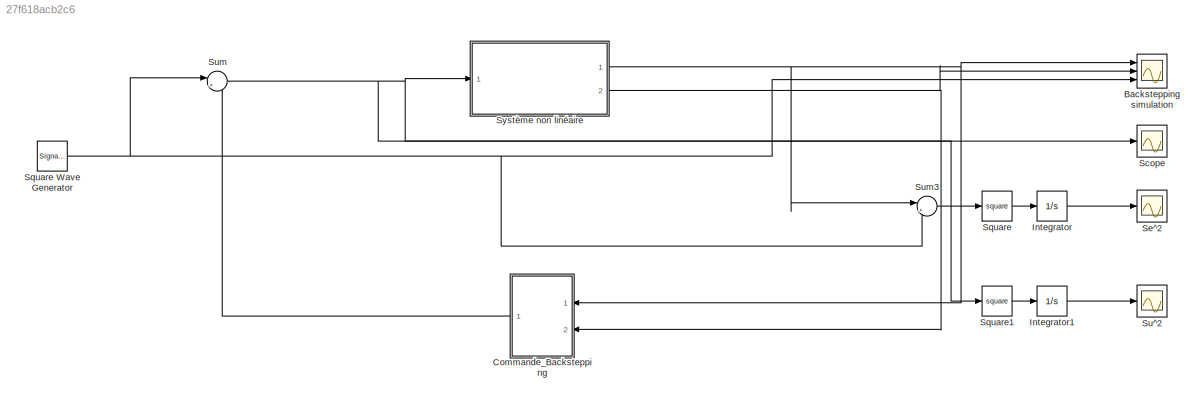
MODEL slx_27f618acb2c6
KIND model
CONFIG AbsTol = auto
CONFIG EnableMultiTasking = off
CONFIG FixedStep = auto
CONFIG MaxStep = 0.2
CONFIG MinStep = auto
CONFIG RelTol = 1e-3
CONFIG SampleTimeConstraint = Unconstrained
CONFIG Solver = ode23
CONFIG SolverName = ode23
CONFIG StartTime = 0.0
CONFIG StopTime = 100
BLOCK [Scope] Backstepping simulation
  Floating = off
  NumInputPorts = 3
  Ports = [3]
  ScopeSpecificationString = Simulink.scopes.TimeScopeBlockCfg('CurrentConfiguration', extmgr.ConfigurationSet(extmgr.Configuration('Core','General UI',true),extmgr.Configuration('Core','Source UI',true),extmgr.Configuration('Sources','WiredSimulink',true),extmgr.Configuration('Visuals','Time Domain',true,'SerializedDisplays',{struct('MinYLimReal','-2.20554','MaxYLimReal','2.20172','YLabelReal','','MinYLimMag','0.00000','MaxY...<+1446ch>
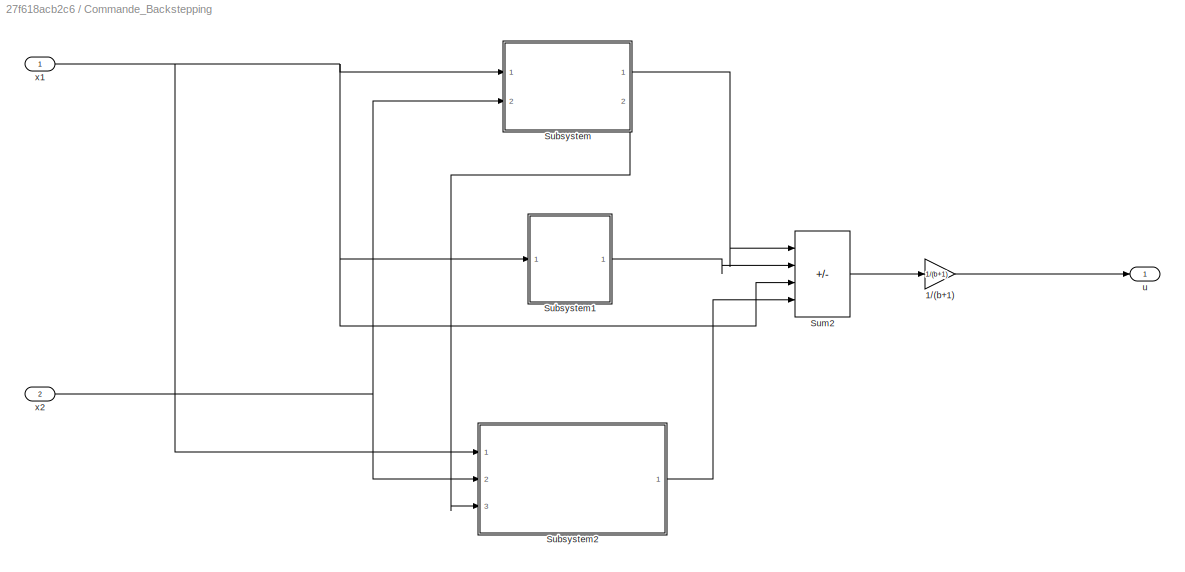
BLOCK [SubSystem] Commande_Backstepping
  NameLocation = top
  Ports = [2, 1]
  RequestExecContextInheritance = off
BLOCK [Gain] Commande_Backstepping/1//(b+1)
  Gain = 1/(b+1)
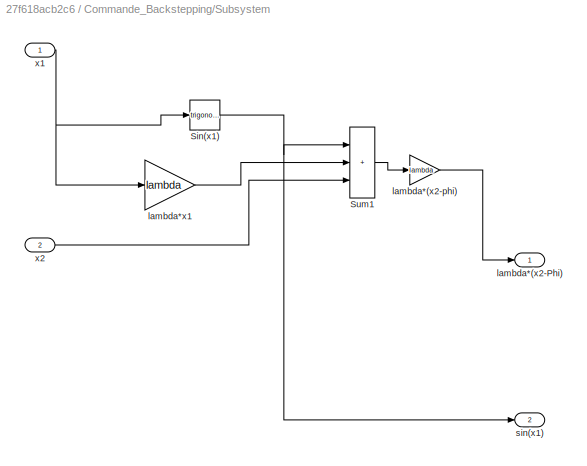
BLOCK [SubSystem] Commande_Backstepping/Subsystem
  Ports = [2, 2]
  RequestExecContextInheritance = off
BLOCK [Trigonometry] Commande_Backstepping/Subsystem/Sin(x1)
  Ports = [1, 1]
BLOCK [Sum] Commande_Backstepping/Subsystem/Sum1
  IconShape = rectangular
  Inputs = |+++
  Ports = [3, 1]
BLOCK [Outport] Commande_Backstepping/Subsystem/lambda*(x2-Phi)
BLOCK [Gain] Commande_Backstepping/Subsystem/lambda*(x2-phi)
  Gain = lambda
BLOCK [Gain] Commande_Backstepping/Subsystem/lambda*x1
  Gain = lambda
BLOCK [Outport] Commande_Backstepping/Subsystem/sin(x1)
  Port = 2
BLOCK [Inport] Commande_Backstepping/Subsystem/x1
BLOCK [Inport] Commande_Backstepping/Subsystem/x2
  Port = 2
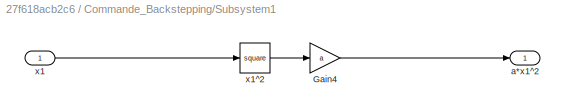
BLOCK [SubSystem] Commande_Backstepping/Subsystem1
  Ports = [1, 1]
  RequestExecContextInheritance = off
BLOCK [Gain] Commande_Backstepping/Subsystem1/Gain4
  Gain = a
BLOCK [Outport] Commande_Backstepping/Subsystem1/a*x1^2
BLOCK [Inport] Commande_Backstepping/Subsystem1/x1 
BLOCK [Math] Commande_Backstepping/Subsystem1/x1^2
  Operator = square
  Ports = [1, 1]
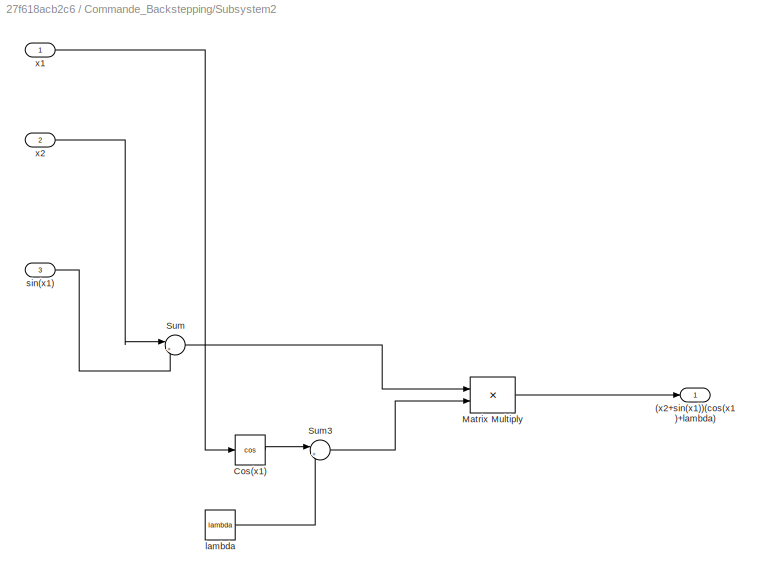
BLOCK [SubSystem] Commande_Backstepping/Subsystem2
  Ports = [3, 1]
  RequestExecContextInheritance = off
BLOCK [Outport] Commande_Backstepping/Subsystem2/(x2+sin(x1))(cos(x1)+lambda)
BLOCK [Trigonometry] Commande_Backstepping/Subsystem2/Cos(x1)
  Operator = cos
  Ports = [1, 1]
BLOCK [Product] Commande_Backstepping/Subsystem2/Matrix Multiply
  Ports = [2, 1]
BLOCK [Sum] Commande_Backstepping/Subsystem2/Sum
  Inputs = |++
  Ports = [2, 1]
BLOCK [Sum] Commande_Backstepping/Subsystem2/Sum3
  Inputs = |++
  Ports = [2, 1]
BLOCK [Constant] Commande_Backstepping/Subsystem2/lambda
  OutDataTypeStr = Inherit: Inherit via back propagation
  Value = lambda
BLOCK [Inport] Commande_Backstepping/Subsystem2/sin(x1)
  Port = 3
BLOCK [Inport] Commande_Backstepping/Subsystem2/x1 
BLOCK [Inport] Commande_Backstepping/Subsystem2/x2
  Port = 2
BLOCK [Sum] Commande_Backstepping/Sum2
  IconShape = rectangular
  Inputs = |----
  Ports = [4, 1]
BLOCK [Outport] Commande_Backstepping/u
BLOCK [Inport] Commande_Backstepping/x1
BLOCK [Inport] Commande_Backstepping/x2
  Port = 2
BLOCK [Integrator] Integrator
  Ports = [1, 1]
BLOCK [Integrator] Integrator1
  Ports = [1, 1]
BLOCK [Scope] Scope
  Floating = off
  NumInputPorts = 1
  Ports = [1]
  ScopeSpecificationString = Simulink.scopes.TimeScopeBlockCfg('CurrentConfiguration', extmgr.ConfigurationSet(extmgr.Configuration('Core','General UI',true),extmgr.Configuration('Core','Source UI',true),extmgr.Configuration('Sources','WiredSimulink',true,'DataLoggingVariableName','ScopeData1'),extmgr.Configuration('Visuals','Time Domain',true,'SerializedDisplays',{struct('MinYLimReal','-1.93473','MaxYLimReal','2.97707','YLab...<+1362ch>
BLOCK [Scope] Se^2
  Floating = off
  NumInputPorts = 1
  Ports = [1]
  ScopeSpecificationString = Simulink.scopes.TimeScopeBlockCfg('CurrentConfiguration', extmgr.ConfigurationSet(extmgr.Configuration('Core','General UI',true),extmgr.Configuration('Core','Source UI',true),extmgr.Configuration('Sources','WiredSimulink',true,'DataLoggingVariableName','ScopeData1'),extmgr.Configuration('Visuals','Time Domain',true,'SerializedDisplays',{struct('MinYLimReal','-1.21854','MaxYLimReal','10.96682','YLa...<+1428ch>
BLOCK [Math] Square
  Operator = square
  Ports = [1, 1]
BLOCK [SignalGenerator] Square Wave Generator
  Frequency = 0.1
  Ports = [0, 1]
  Units = rad/sec
  WaveForm = square
BLOCK [Math] Square1
  Operator = square
  Ports = [1, 1]
BLOCK [Scope] Su^2
  Floating = off
  NumInputPorts = 1
  Ports = [1]
  ScopeSpecificationString = Simulink.scopes.TimeScopeBlockCfg('CurrentConfiguration', extmgr.ConfigurationSet(extmgr.Configuration('Core','General UI',true),extmgr.Configuration('Core','Source UI',true),extmgr.Configuration('Sources','WiredSimulink',true,'DataLoggingVariableName','ScopeData2'),extmgr.Configuration('Visuals','Time Domain',true,'SerializedDisplays',{struct('MinYLimReal','-3.6006','MaxYLimReal','32.40537','YLab...<+1427ch>
BLOCK [Sum] Sum
  Inputs = |++
  Ports = [2, 1]
BLOCK [Sum] Sum3
  Inputs = |+-
  Ports = [2, 1]
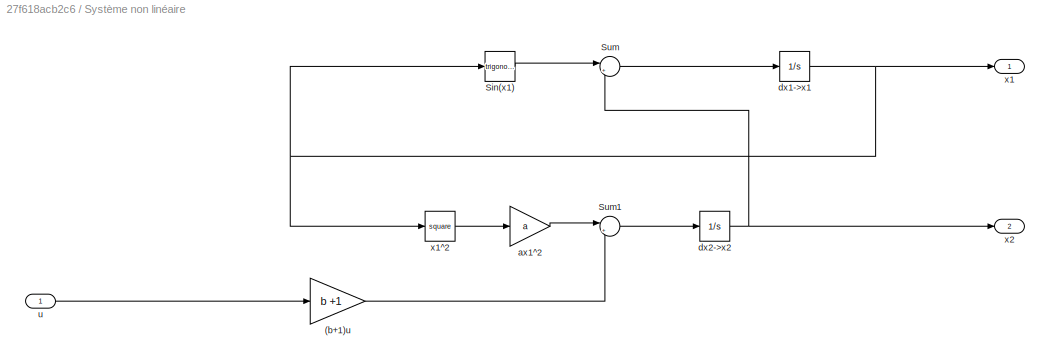
BLOCK [SubSystem] Système non linéaire
  Ports = [1, 2]
  RequestExecContextInheritance = off
BLOCK [Gain] Système non linéaire/(b+1)u
  Gain = b +1
BLOCK [Trigonometry] Système non linéaire/Sin(x1)
  Ports = [1, 1]
BLOCK [Sum] Système non linéaire/Sum
  Inputs = |++
  Ports = [2, 1]
BLOCK [Sum] Système non linéaire/Sum1
  Inputs = |++
  Ports = [2, 1]
BLOCK [Gain] Système non linéaire/ax1^2
  Gain = a
BLOCK [Integrator] Système non linéaire/dx1->x1
  Ports = [1, 1]
BLOCK [Integrator] Système non linéaire/dx2->x2
  Ports = [1, 1]
BLOCK [Inport] Système non linéaire/u
BLOCK [Outport] Système non linéaire/x1
BLOCK [Math] Système non linéaire/x1^2
  Operator = square
  Ports = [1, 1]
BLOCK [Outport] Système non linéaire/x2
  Port = 2
LINE Commande_Backstepping/1//(b+1):1 -> Commande_Backstepping/u:1
NET Commande_Backstepping/Subsystem/Sin(x1):1 -> Commande_Backstepping/Subsystem/Sum1:1, Commande_Backstepping/Subsystem/sin(x1):1
LINE Commande_Backstepping/Subsystem/Sum1:1 -> Commande_Backstepping/Subsystem/lambda*(x2-phi):1
LINE Commande_Backstepping/Subsystem/lambda*(x2-phi):1 -> Commande_Backstepping/Subsystem/lambda*(x2-Phi):1
LINE Commande_Backstepping/Subsystem/lambda*x1:1 -> Commande_Backstepping/Subsystem/Sum1:2
NET Commande_Backstepping/Subsystem/x1:1 -> Commande_Backstepping/Subsystem/Sin(x1):1, Commande_Backstepping/Subsystem/lambda*x1:1
LINE Commande_Backstepping/Subsystem/x2:1 -> Commande_Backstepping/Subsystem/Sum1:3
LINE Commande_Backstepping/Subsystem1/Gain4:1 -> Commande_Backstepping/Subsystem1/a*x1^2:1
LINE Commande_Backstepping/Subsystem1/x1 :1 -> Commande_Backstepping/Subsystem1/x1^2:1
LINE Commande_Backstepping/Subsystem1/x1^2:1 -> Commande_Backstepping/Subsystem1/Gain4:1
LINE Commande_Backstepping/Subsystem1:1 -> Commande_Backstepping/Sum2:2
LINE Commande_Backstepping/Subsystem2/Cos(x1):1 -> Commande_Backstepping/Subsystem2/Sum3:1
LINE Commande_Backstepping/Subsystem2/Matrix Multiply:1 -> Commande_Backstepping/Subsystem2/(x2+sin(x1))(cos(x1)+lambda):1
LINE Commande_Backstepping/Subsystem2/Sum3:1 -> Commande_Backstepping/Subsystem2/Matrix Multiply:2
LINE Commande_Backstepping/Subsystem2/Sum:1 -> Commande_Backstepping/Subsystem2/Matrix Multiply:1
LINE Commande_Backstepping/Subsystem2/lambda:1 -> Commande_Backstepping/Subsystem2/Sum3:2
LINE Commande_Backstepping/Subsystem2/sin(x1):1 -> Commande_Backstepping/Subsystem2/Sum:2
LINE Commande_Backstepping/Subsystem2/x1 :1 -> Commande_Backstepping/Subsystem2/Cos(x1):1
LINE Commande_Backstepping/Subsystem2/x2:1 -> Commande_Backstepping/Subsystem2/Sum:1
LINE Commande_Backstepping/Subsystem2:1 -> Commande_Backstepping/Sum2:4
LINE Commande_Backstepping/Subsystem:1 -> Commande_Backstepping/Sum2:1
LINE Commande_Backstepping/Subsystem:2 -> Commande_Backstepping/Subsystem2:3
LINE Commande_Backstepping/Sum2:1 -> Commande_Backstepping/1//(b+1):1
NET Commande_Backstepping/x1:1 -> Commande_Backstepping/Subsystem1:1, Commande_Backstepping/Subsystem2:1, Commande_Backstepping/Subsystem:1, Commande_Backstepping/Sum2:3
NET Commande_Backstepping/x2:1 -> Commande_Backstepping/Subsystem2:2, Commande_Backstepping/Subsystem:2
LINE Commande_Backstepping:1 -> Sum:2
LINE Integrator1:1 -> Su^2:1
LINE Integrator:1 -> Se^2:1
NET Square Wave Generator:1 -> Backstepping simulation:3, Sum3:2, Sum:1
LINE Square1:1 -> Integrator1:1
LINE Square:1 -> Integrator:1
LINE Sum3:1 -> Square:1
NET Sum:1 -> Scope:1, Square1:1, Système non linéaire:1
LINE Système non linéaire/(b+1)u:1 -> Système non linéaire/Sum1:2
LINE Système non linéaire/Sin(x1):1 -> Système non linéaire/Sum:1
LINE Système non linéaire/Sum1:1 -> Système non linéaire/dx2->x2:1
LINE Système non linéaire/Sum:1 -> Système non linéaire/dx1->x1:1
LINE Système non linéaire/ax1^2:1 -> Système non linéaire/Sum1:1
NET Système non linéaire/dx1->x1:1 -> Système non linéaire/Sin(x1):1, Système non linéaire/x1:1, Système non linéaire/x1^2:1
NET Système non linéaire/dx2->x2:1 -> Système non linéaire/Sum:2, Système non linéaire/x2:1
LINE Système non linéaire/u:1 -> Système non linéaire/(b+1)u:1
LINE Système non linéaire/x1^2:1 -> Système non linéaire/ax1^2:1
NET Système non linéaire:1 -> Backstepping simulation:1, Commande_Backstepping:1, Sum3:1
NET Système non linéaire:2 -> Backstepping simulation:2, Commande_Backstepping:2
note: NET lines group one-source signal fan-out (src -> all destinations, sorted); 1:1 wires keep LINE
